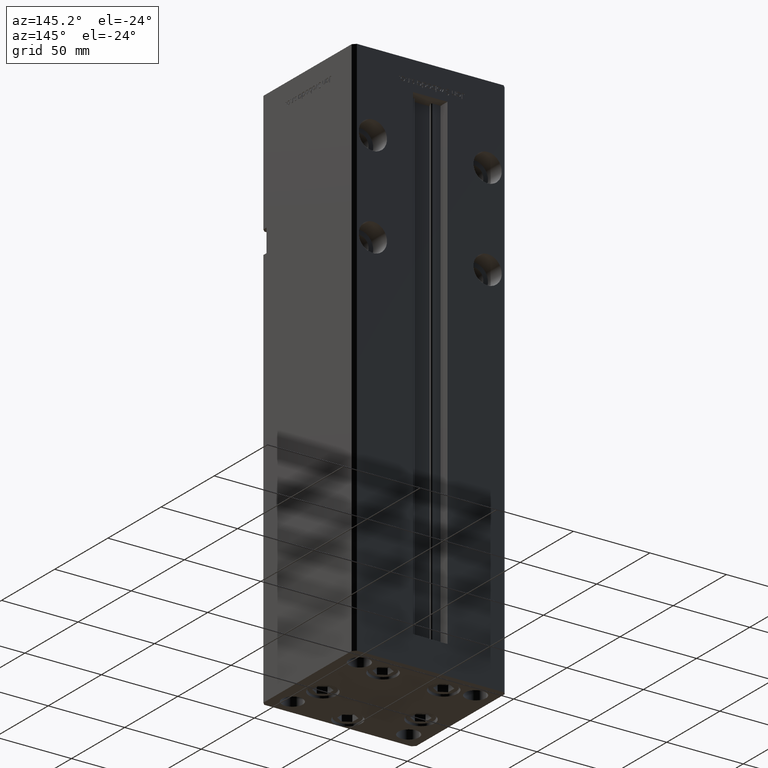
[diagram: clean part render]
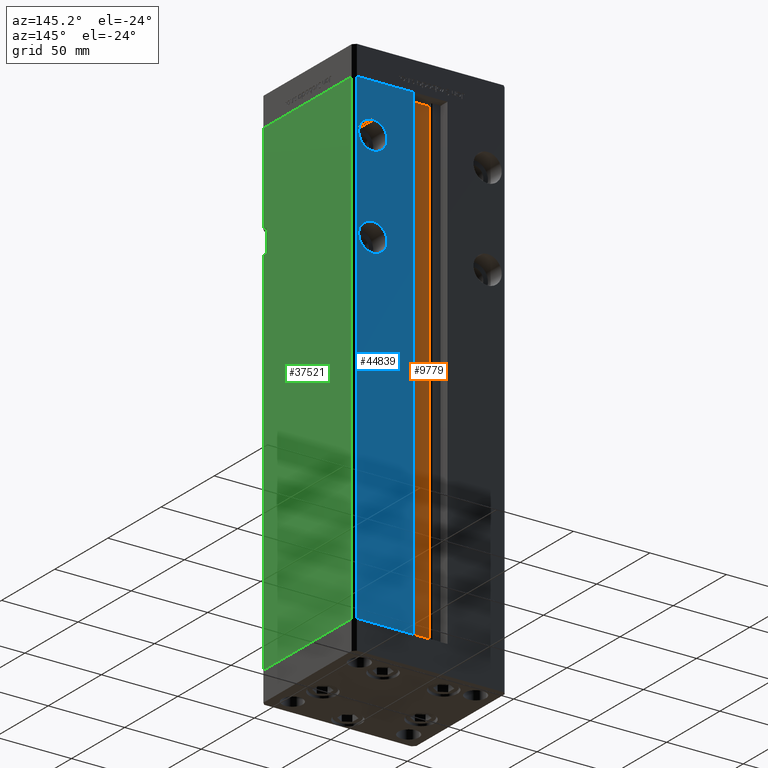
[diagram: same view with three faces highlighted in distinct colors, each labeled with its STEP entity id]
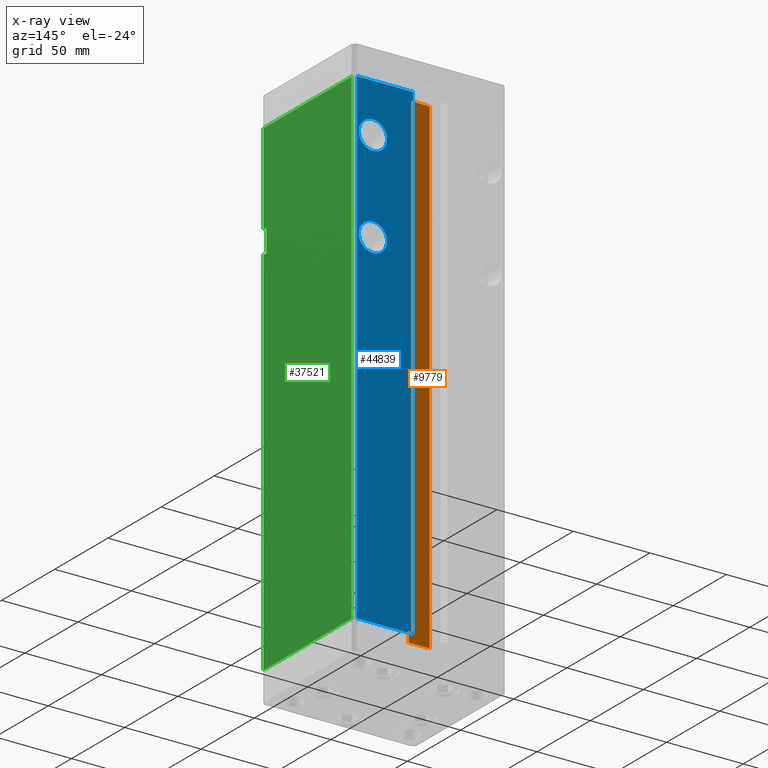
[diagram: x-ray of the same camera — body ghosted, the three highlighted faces saturated]
A machine part, auxiliary view with three faces highlighted in distinct colors.
The next image is the same camera in x-ray (body ghosted, the three faces saturated) — at least one of them is partly hidden behind the body in this view.
Their STEP definitions:

[orange] entity #9779 — the highlighted planar face has unit normal (0, -1, 0).
#118 = ORIENTED_EDGE ( 'NONE', *, *, #17821, .F. ) ;
#1197 = ORIENTED_EDGE ( 'NONE', *, *, #10326, .F. ) ;
#9779 = ADVANCED_FACE ( 'NONE', ( #24419 ), #44849, .F. ) ;
#10286 = VECTOR ( 'NONE', #45199, 1000.000000000000000 ) ;
#10326 = EDGE_CURVE ( 'NONE', #23013, #53172, #49769, .T. ) ;
#11562 = CARTESIAN_POINT ( 'NONE',  ( -6.876153656360465050, 32.99999999999986500, 318.5000000000000000 ) ) ;
#16613 = CARTESIAN_POINT ( 'NONE',  ( 6.876153656360465050, 32.99999999999986500, 0.000000000000000000 ) ) ;
#17821 = EDGE_CURVE ( 'NONE', #48186, #18759, #19114, .T. ) ;
#18302 = ORIENTED_EDGE ( 'NONE', *, *, #38067, .F. ) ;
#18759 = VERTEX_POINT ( 'NONE', #11562 ) ;
#19114 = LINE ( 'NONE', #34464, #44026 ) ;
#20379 = DIRECTION ( 'NONE',  ( 0.000000000000000000, 0.000000000000000000, -1.000000000000000000 ) ) ;
#20491 = VECTOR ( 'NONE', #48550, 1000.000000000000000 ) ;
#20624 = AXIS2_PLACEMENT_3D ( 'NONE', #16613, #48343, #20379 ) ;
#21258 = VECTOR ( 'NONE', #51434, 1000.000000000000000 ) ;
#22248 = CARTESIAN_POINT ( 'NONE',  ( 6.876153656360465050, 32.99999999999986500, 318.5000000000000000 ) ) ;
#22566 = CARTESIAN_POINT ( 'NONE',  ( 6.876153656360465050, 32.99999999999986500, 0.000000000000000000 ) ) ;
#23013 = VERTEX_POINT ( 'NONE', #25565 ) ;
#24419 = FACE_OUTER_BOUND ( 'NONE', #52847, .T. ) ;
#24500 = CARTESIAN_POINT ( 'NONE',  ( 6.876153656360465050, 32.99999999999986500, 0.000000000000000000 ) ) ;
#24624 = LINE ( 'NONE', #41025, #20491 ) ;
#25565 = CARTESIAN_POINT ( 'NONE',  ( -6.876153656360465050, 32.99999999999986500, 0.000000000000000000 ) ) ;
#26927 = DIRECTION ( 'NONE',  ( -1.000000000000000000, 0.000000000000000000, 0.000000000000000000 ) ) ;
#34464 = CARTESIAN_POINT ( 'NONE',  ( 0.000000000000000000, 32.99999999999986500, 318.5000000000000000 ) ) ;
#35816 = LINE ( 'NONE', #52486, #21258 ) ;
#38067 = EDGE_CURVE ( 'NONE', #53172, #48186, #24624, .T. ) ;
#41025 = CARTESIAN_POINT ( 'NONE',  ( 6.876153656360465050, 32.99999999999986500, 0.000000000000000000 ) ) ;
#42901 = ORIENTED_EDGE ( 'NONE', *, *, #43754, .T. ) ;
#43754 = EDGE_CURVE ( 'NONE', #23013, #18759, #35816, .T. ) ;
#44026 = VECTOR ( 'NONE', #26927, 1000.000000000000000 ) ;
#44849 = PLANE ( 'NONE',  #20624 ) ;
#45199 = DIRECTION ( 'NONE',  ( 1.000000000000000000, -0.000000000000000000, -0.000000000000000000 ) ) ;
#48186 = VERTEX_POINT ( 'NONE', #22248 ) ;
#48343 = DIRECTION ( 'NONE',  ( 0.000000000000000000, -1.000000000000000000, -0.000000000000000000 ) ) ;
#48550 = DIRECTION ( 'NONE',  ( -0.000000000000000000, -0.000000000000000000, 1.000000000000000000 ) ) ;
#49769 = LINE ( 'NONE', #24500, #10286 ) ;
#51434 = DIRECTION ( 'NONE',  ( -0.000000000000000000, -0.000000000000000000, 1.000000000000000000 ) ) ;
#52486 = CARTESIAN_POINT ( 'NONE',  ( -6.876153656360465050, 32.99999999999986500, 0.000000000000000000 ) ) ;
#52847 = EDGE_LOOP ( 'NONE', ( #18302, #1197, #42901, #118 ) ) ;
#53172 = VERTEX_POINT ( 'NONE', #22566 ) ;

[blue] entity #44839 — the highlighted planar face has unit normal (0, -1, 0).
#4963 = AXIS2_PLACEMENT_3D ( 'NONE', #52303, #19750, #44227 ) ;
#4999 = VERTEX_POINT ( 'NONE', #47551 ) ;
#5729 = CARTESIAN_POINT ( 'NONE',  ( 11.24999999999999645, 43.50000000000000000, 0.000000000000000000 ) ) ;
#7858 = LINE ( 'NONE', #44458, #52241 ) ;
#9629 = CARTESIAN_POINT ( 'NONE',  ( 37.50000000000000000, 43.50000000000000000, 226.5000000000000000 ) ) ;
#9809 = VERTEX_POINT ( 'NONE', #12566 ) ;
#11242 = EDGE_LOOP ( 'NONE', ( #16857, #20613 ) ) ;
#11686 = EDGE_LOOP ( 'NONE', ( #14746, #31231 ) ) ;
#12566 = CARTESIAN_POINT ( 'NONE',  ( 48.00000000000000711, 43.50000000000000000, 0.000000000000000000 ) ) ;
#12848 = VERTEX_POINT ( 'NONE', #5729 ) ;
#13591 = VERTEX_POINT ( 'NONE', #40743 ) ;
#14134 = CARTESIAN_POINT ( 'NONE',  ( 11.24999999999998934, 43.50000000000000000, 318.5000000000000000 ) ) ;
#14164 = DIRECTION ( 'NONE',  ( 0.000000000000000000, 0.000000000000000000, 1.000000000000000000 ) ) ;
#14746 = ORIENTED_EDGE ( 'NONE', *, *, #29926, .F. ) ;
#14915 = FACE_BOUND ( 'NONE', #11242, .T. ) ;
#16290 = AXIS2_PLACEMENT_3D ( 'NONE', #22857, #39274, #18821 ) ;
#16857 = ORIENTED_EDGE ( 'NONE', *, *, #50471, .F. ) ;
#17408 = EDGE_CURVE ( 'NONE', #12848, #41268, #46362, .T. ) ;
#18112 = CARTESIAN_POINT ( 'NONE',  ( 11.24999999999999645, 43.50000000000000000, 0.000000000000000000 ) ) ;
#18211 = DIRECTION ( 'NONE',  ( 0.000000000000000000, 1.000000000000000000, 0.000000000000000000 ) ) ;
#18821 = DIRECTION ( 'NONE',  ( 0.000000000000000000, 0.000000000000000000, 1.000000000000000000 ) ) ;
#19246 = CARTESIAN_POINT ( 'NONE',  ( 37.50000000000000000, 43.50000000000000000, 235.7500000000000284 ) ) ;
#19750 = DIRECTION ( 'NONE',  ( 0.000000000000000000, -1.000000000000000000, 0.000000000000000000 ) ) ;
#20613 = ORIENTED_EDGE ( 'NONE', *, *, #48221, .F. ) ;
#21526 = VERTEX_POINT ( 'NONE', #19246 ) ;
#21827 = DIRECTION ( 'NONE',  ( -0.000000000000000000, -0.000000000000000000, -1.000000000000000000 ) ) ;
#22857 = CARTESIAN_POINT ( 'NONE',  ( 37.50000000000000000, 43.50000000000000000, 286.5000000000000000 ) ) ;
#24799 = VECTOR ( 'NONE', #21827, 1000.000000000000000 ) ;
#25679 = CIRCLE ( 'NONE', #29983, 9.249999999999980460 ) ;
#25703 = VERTEX_POINT ( 'NONE', #45593 ) ;
#26059 = DIRECTION ( 'NONE',  ( 0.000000000000000000, 1.000000000000000000, -0.000000000000000000 ) ) ;
#26397 = LINE ( 'NONE', #47090, #24799 ) ;
#27487 = CIRCLE ( 'NONE', #16290, 9.249999999999980460 ) ;
#28202 = AXIS2_PLACEMENT_3D ( 'NONE', #9629, #26059, #42450 ) ;
#29114 = CARTESIAN_POINT ( 'NONE',  ( 37.50000000000000000, 43.50000000000000000, 277.2500000000000000 ) ) ;
#29926 = EDGE_CURVE ( 'NONE', #21526, #25703, #48547, .T. ) ;
#29983 = AXIS2_PLACEMENT_3D ( 'NONE', #44007, #18211, #14164 ) ;
#31231 = ORIENTED_EDGE ( 'NONE', *, *, #46420, .F. ) ;
#34592 = VECTOR ( 'NONE', #38307, 1000.000000000000000 ) ;
#34675 = CARTESIAN_POINT ( 'NONE',  ( -11.24999999999999645, 43.50000000000000000, 318.5000000000000000 ) ) ;
#35462 = LINE ( 'NONE', #34675, #45448 ) ;
#36263 = CARTESIAN_POINT ( 'NONE',  ( 37.50000000000000000, 43.50000000000000000, 226.5000000000000000 ) ) ;
#38307 = DIRECTION ( 'NONE',  ( -0.000000000000000000, -0.000000000000000000, 1.000000000000000000 ) ) ;
#38360 = EDGE_CURVE ( 'NONE', #9809, #12848, #7858, .T. ) ;
#38852 = EDGE_CURVE ( 'NONE', #4999, #9809, #26397, .T. ) ;
#39274 = DIRECTION ( 'NONE',  ( 0.000000000000000000, 1.000000000000000000, 0.000000000000000000 ) ) ;
#39945 = FACE_OUTER_BOUND ( 'NONE', #40128, .T. ) ;
#40128 = EDGE_LOOP ( 'NONE', ( #48036, #45102, #52438, #48886 ) ) ;
#40205 = PLANE ( 'NONE',  #4963 ) ;
#40701 = DIRECTION ( 'NONE',  ( -1.000000000000000000, 0.000000000000000000, 0.000000000000000000 ) ) ;
#40731 = EDGE_CURVE ( 'NONE', #41268, #4999, #35462, .T. ) ;
#40743 = CARTESIAN_POINT ( 'NONE',  ( 37.50000000000000000, 43.50000000000000000, 295.7499999999999432 ) ) ;
#41268 = VERTEX_POINT ( 'NONE', #14134 ) ;
#42450 = DIRECTION ( 'NONE',  ( 0.000000000000000000, 0.000000000000000000, -1.000000000000000000 ) ) ;
#44007 = CARTESIAN_POINT ( 'NONE',  ( 37.50000000000000000, 43.50000000000000000, 286.5000000000000000 ) ) ;
#44070 = DIRECTION ( 'NONE',  ( 0.000000000000000000, 0.000000000000000000, -1.000000000000000000 ) ) ;
#44227 = DIRECTION ( 'NONE',  ( 0.000000000000000000, -0.000000000000000000, -1.000000000000000000 ) ) ;
#44458 = CARTESIAN_POINT ( 'NONE',  ( -11.24999999999999645, 43.50000000000000000, 0.000000000000000000 ) ) ;
#44839 = ADVANCED_FACE ( 'NONE', ( #47736, #14915, #39945 ), #40205, .F. ) ;
#45102 = ORIENTED_EDGE ( 'NONE', *, *, #17408, .T. ) ;
#45448 = VECTOR ( 'NONE', #46779, 1000.000000000000000 ) ;
#45593 = CARTESIAN_POINT ( 'NONE',  ( 37.50000000000000000, 43.50000000000000000, 217.2500000000000000 ) ) ;
#46000 = AXIS2_PLACEMENT_3D ( 'NONE', #36263, #52409, #44070 ) ;
#46095 = VERTEX_POINT ( 'NONE', #29114 ) ;
#46362 = LINE ( 'NONE', #18112, #34592 ) ;
#46420 = EDGE_CURVE ( 'NONE', #25703, #21526, #51396, .T. ) ;
#46779 = DIRECTION ( 'NONE',  ( 1.000000000000000000, 0.000000000000000000, 0.000000000000000000 ) ) ;
#47090 = CARTESIAN_POINT ( 'NONE',  ( 48.00000000000000711, 43.50000000000000000, 318.5000000000000000 ) ) ;
#47551 = CARTESIAN_POINT ( 'NONE',  ( 48.00000000000000711, 43.50000000000000000, 318.5000000000000000 ) ) ;
#47736 = FACE_BOUND ( 'NONE', #11686, .T. ) ;
#48036 = ORIENTED_EDGE ( 'NONE', *, *, #38360, .T. ) ;
#48221 = EDGE_CURVE ( 'NONE', #46095, #13591, #25679, .T. ) ;
#48547 = CIRCLE ( 'NONE', #46000, 9.250000000000008882 ) ;
#48886 = ORIENTED_EDGE ( 'NONE', *, *, #38852, .T. ) ;
#50471 = EDGE_CURVE ( 'NONE', #13591, #46095, #27487, .T. ) ;
#51396 = CIRCLE ( 'NONE', #28202, 9.250000000000008882 ) ;
#52241 = VECTOR ( 'NONE', #40701, 1000.000000000000000 ) ;
#52303 = CARTESIAN_POINT ( 'NONE',  ( -11.24999999999999645, 43.50000000000000000, 318.5000000000000000 ) ) ;
#52409 = DIRECTION ( 'NONE',  ( 0.000000000000000000, 1.000000000000000000, -0.000000000000000000 ) ) ;
#52438 = ORIENTED_EDGE ( 'NONE', *, *, #40731, .T. ) ;

[green] entity #37521 — the highlighted planar face has unit normal (1, -0, 0).
#553 = CARTESIAN_POINT ( 'NONE',  ( 49.99999999999998579, -41.49999999999999289, 244.0000000000000000 ) ) ;
#1509 = ORIENTED_EDGE ( 'NONE', *, *, #34038, .F. ) ;
#3215 = VECTOR ( 'NONE', #33918, 1000.000000000000000 ) ;
#3808 = VECTOR ( 'NONE', #13235, 1000.000000000000000 ) ;
#4123 = AXIS2_PLACEMENT_3D ( 'NONE', #34399, #38191, #25813 ) ;
#6213 = CARTESIAN_POINT ( 'NONE',  ( 49.99999999999998579, -38.49999999999999289, 244.0000000000000000 ) ) ;
#6786 = VERTEX_POINT ( 'NONE', #36534 ) ;
#7370 = ORIENTED_EDGE ( 'NONE', *, *, #21099, .T. ) ;
#7934 = VERTEX_POINT ( 'NONE', #15504 ) ;
#8154 = VECTOR ( 'NONE', #44939, 1000.000000000000000 ) ;
#8666 = CARTESIAN_POINT ( 'NONE',  ( 49.99999999999998579, -41.49999999999999289, 318.5000000000000000 ) ) ;
#10887 = DIRECTION ( 'NONE',  ( -0.000000000000000000, -0.000000000000000000, -1.000000000000000000 ) ) ;
#11158 = ORIENTED_EDGE ( 'NONE', *, *, #17532, .F. ) ;
#11466 = ORIENTED_EDGE ( 'NONE', *, *, #44553, .F. ) ;
#13235 = DIRECTION ( 'NONE',  ( -0.000000000000000000, -0.000000000000000000, -1.000000000000000000 ) ) ;
#13420 = PLANE ( 'NONE',  #4123 ) ;
#14255 = ORIENTED_EDGE ( 'NONE', *, *, #28394, .T. ) ;
#14321 = LINE ( 'NONE', #18902, #32320 ) ;
#15132 = CARTESIAN_POINT ( 'NONE',  ( 49.99999999999998579, -38.50000000000000000, 259.0000000000000000 ) ) ;
#15504 = CARTESIAN_POINT ( 'NONE',  ( 49.99999999999998579, -41.49999999999999289, 0.000000000000000000 ) ) ;
#16438 = LINE ( 'NONE', #47722, #8154 ) ;
#17532 = EDGE_CURVE ( 'NONE', #46999, #29536, #51998, .T. ) ;
#18902 = CARTESIAN_POINT ( 'NONE',  ( 50.00000000000001421, 41.49999999999999289, 0.000000000000000000 ) ) ;
#18978 = ORIENTED_EDGE ( 'NONE', *, *, #25395, .T. ) ;
#19373 = CARTESIAN_POINT ( 'NONE',  ( 49.99999999999998579, -41.49999999999999289, 318.5000000000000000 ) ) ;
#19988 = CARTESIAN_POINT ( 'NONE',  ( 50.00000000000001421, 41.49999999999999289, 0.000000000000000000 ) ) ;
#20783 = LINE ( 'NONE', #8666, #3808 ) ;
#21099 = EDGE_CURVE ( 'NONE', #34557, #7934, #48399, .T. ) ;
#21454 = ORIENTED_EDGE ( 'NONE', *, *, #31893, .F. ) ;
#22622 = VERTEX_POINT ( 'NONE', #28602 ) ;
#22924 = VECTOR ( 'NONE', #10887, 1000.000000000000000 ) ;
#23532 = VECTOR ( 'NONE', #48681, 1000.000000000000000 ) ;
#24213 = CARTESIAN_POINT ( 'NONE',  ( 50.00000000000001421, 41.49999999999999289, 318.5000000000000000 ) ) ;
#25395 = EDGE_CURVE ( 'NONE', #6786, #22622, #35791, .T. ) ;
#25813 = DIRECTION ( 'NONE',  ( 3.344045254895050480E-16, 1.000000000000000000, 0.000000000000000000 ) ) ;
#28394 = EDGE_CURVE ( 'NONE', #22622, #46398, #20783, .T. ) ;
#28602 = CARTESIAN_POINT ( 'NONE',  ( 49.99999999999998579, -41.49999999999999289, 318.5000000000000000 ) ) ;
#29274 = EDGE_LOOP ( 'NONE', ( #42315, #7370, #21454, #1509, #18978, #14255, #11466, #11158 ) ) ;
#29386 = VERTEX_POINT ( 'NONE', #19988 ) ;
#29536 = VERTEX_POINT ( 'NONE', #35022 ) ;
#30351 = EDGE_CURVE ( 'NONE', #46999, #34557, #16438, .T. ) ;
#30375 = FACE_OUTER_BOUND ( 'NONE', #29274, .T. ) ;
#30743 = DIRECTION ( 'NONE',  ( -3.344045254895050973E-16, -1.000000000000000000, 0.000000000000000000 ) ) ;
#31544 = DIRECTION ( 'NONE',  ( -0.000000000000000000, -0.000000000000000000, 1.000000000000000000 ) ) ;
#31893 = EDGE_CURVE ( 'NONE', #29386, #7934, #14321, .T. ) ;
#32320 = VECTOR ( 'NONE', #30743, 1000.000000000000000 ) ;
#33918 = DIRECTION ( 'NONE',  ( -0.000000000000000000, -1.000000000000000000, -0.000000000000000000 ) ) ;
#34038 = EDGE_CURVE ( 'NONE', #6786, #29386, #52052, .T. ) ;
#34399 = CARTESIAN_POINT ( 'NONE',  ( 50.00000000000001421, 41.49999999999999289, 318.5000000000000000 ) ) ;
#34557 = VERTEX_POINT ( 'NONE', #553 ) ;
#35022 = CARTESIAN_POINT ( 'NONE',  ( 49.99999999999998579, -38.50000000000000000, 259.0000000000000000 ) ) ;
#35778 = DIRECTION ( 'NONE',  ( -0.000000000000000000, -0.000000000000000000, -1.000000000000000000 ) ) ;
#35791 = LINE ( 'NONE', #24213, #23532 ) ;
#36393 = VECTOR ( 'NONE', #35778, 1000.000000000000000 ) ;
#36534 = CARTESIAN_POINT ( 'NONE',  ( 50.00000000000001421, 41.49999999999999289, 318.5000000000000000 ) ) ;
#37379 = CARTESIAN_POINT ( 'NONE',  ( 49.99999999999998579, -41.49999999999999289, 259.0000000000000000 ) ) ;
#37432 = CARTESIAN_POINT ( 'NONE',  ( 49.99999999999998579, -38.50000000000000000, 259.0000000000000000 ) ) ;
#37521 = ADVANCED_FACE ( 'NONE', ( #30375 ), #13420, .T. ) ;
#37971 = LINE ( 'NONE', #37432, #3215 ) ;
#38191 = DIRECTION ( 'NONE',  ( 1.000000000000000000, -3.344045254895050480E-16, 0.000000000000000000 ) ) ;
#38907 = VECTOR ( 'NONE', #31544, 1000.000000000000000 ) ;
#42315 = ORIENTED_EDGE ( 'NONE', *, *, #30351, .T. ) ;
#44553 = EDGE_CURVE ( 'NONE', #29536, #46398, #37971, .T. ) ;
#44939 = DIRECTION ( 'NONE',  ( -0.000000000000000000, -1.000000000000000000, -0.000000000000000000 ) ) ;
#46398 = VERTEX_POINT ( 'NONE', #37379 ) ;
#46999 = VERTEX_POINT ( 'NONE', #6213 ) ;
#47722 = CARTESIAN_POINT ( 'NONE',  ( 49.99999999999998579, -38.50000000000000000, 244.0000000000000000 ) ) ;
#48004 = CARTESIAN_POINT ( 'NONE',  ( 50.00000000000001421, 41.49999999999999289, 318.5000000000000000 ) ) ;
#48399 = LINE ( 'NONE', #19373, #36393 ) ;
#48681 = DIRECTION ( 'NONE',  ( -3.344045254895050973E-16, -1.000000000000000000, 0.000000000000000000 ) ) ;
#51998 = LINE ( 'NONE', #15132, #38907 ) ;
#52052 = LINE ( 'NONE', #48004, #22924 ) ;